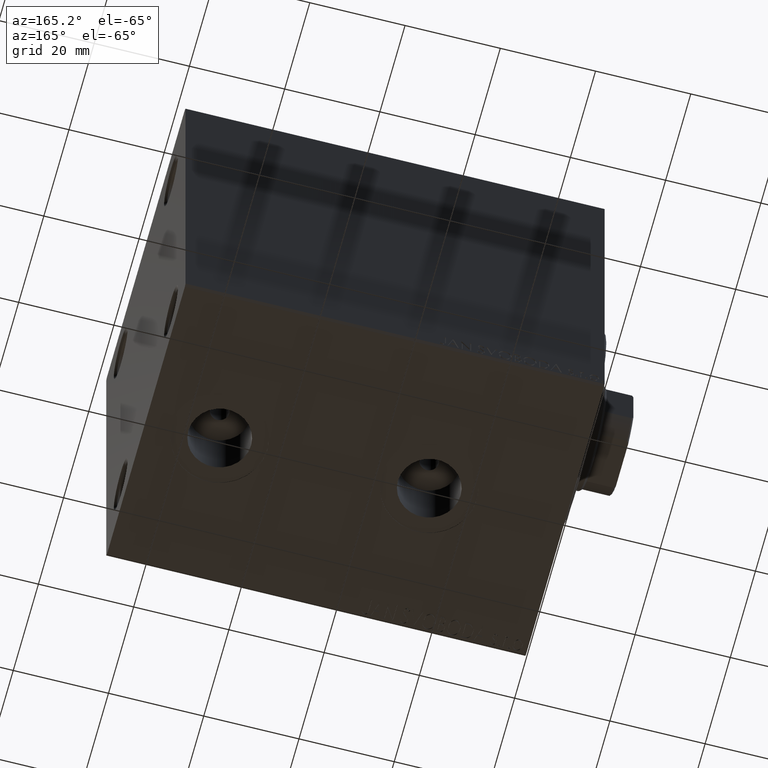
[diagram: clean part render]
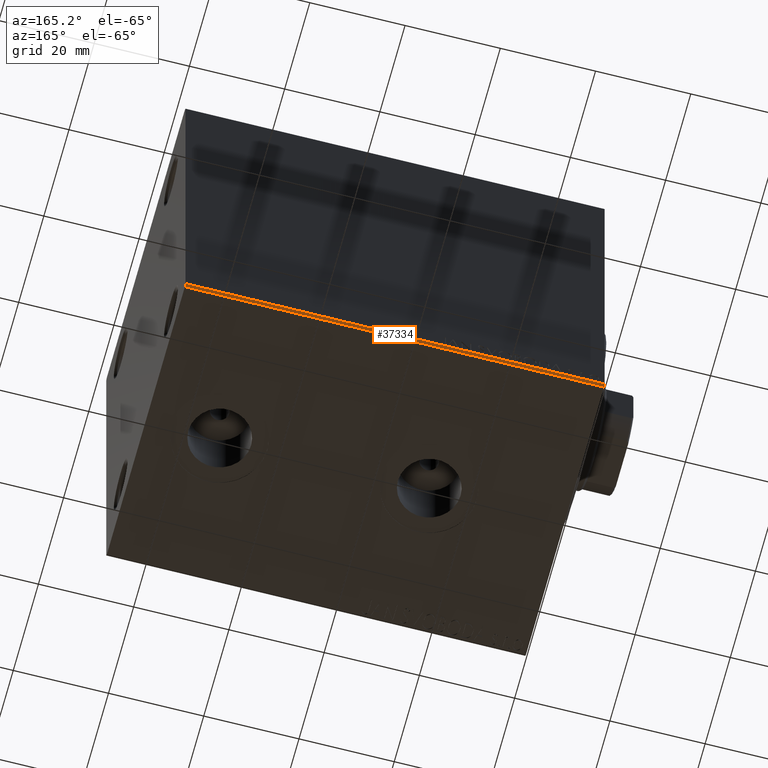
[diagram: same view with one face highlighted and labeled with its STEP entity id]
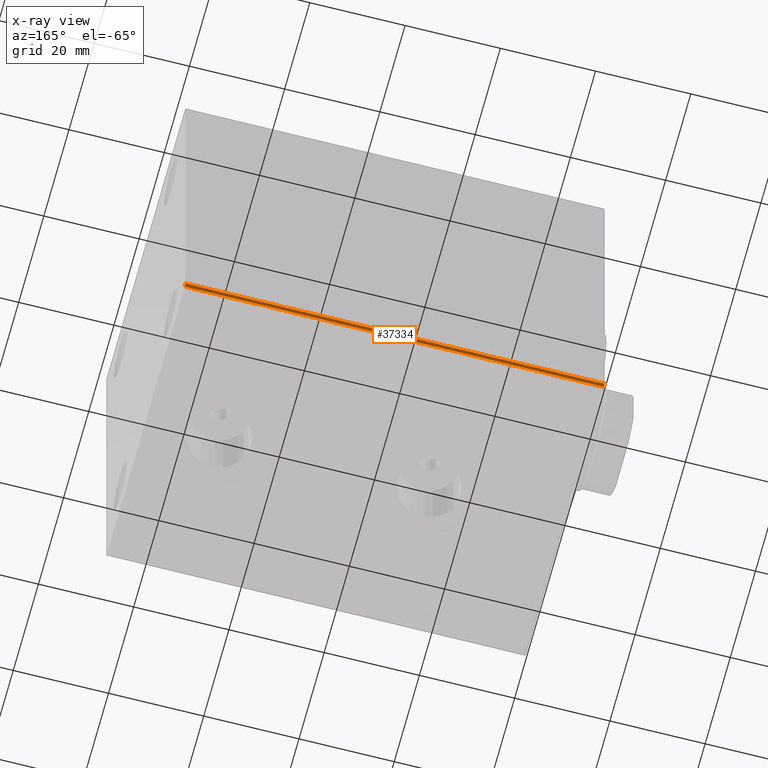
[diagram: x-ray of the same camera — body ghosted, the highlighted face saturated]
A machine part, auxiliary view. The second image highlights one B-rep face of the part: STEP entity #37334.
The next image is the same camera in x-ray: the body ghosted, the highlighted face saturated — about 0% of this face is hidden behind the body in this view.
In plain terms, the highlighted planar face has unit normal (0, -0.7071, 0.7071).
Its self-contained STEP definition (entity closure, byte-faithful):
#790 = DIRECTION ( 'NONE',  ( 0.000000000000000000, -0.7071067811865474617, -0.7071067811865474617 ) ) ;
#1462 = CARTESIAN_POINT ( 'NONE',  ( 88.00000000000000000, 31.00000000000004263, -42.50000000000000711 ) ) ;
#2845 = VECTOR ( 'NONE', #790, 1000.000000000000114 ) ;
#4914 = EDGE_CURVE ( 'NONE', #24690, #40205, #13469, .T. ) ;
#5669 = CARTESIAN_POINT ( 'NONE',  ( 88.00000000000000000, 31.50000000000001421, -42.00000000000003553 ) ) ;
#5770 = AXIS2_PLACEMENT_3D ( 'NONE', #5669, #19746, #8915 ) ;
#7763 = LINE ( 'NONE', #28748, #20560 ) ;
#8915 = DIRECTION ( 'NONE',  ( -1.000000000000000000, 0.000000000000000000, 0.000000000000000000 ) ) ;
#11188 = CARTESIAN_POINT ( 'NONE',  ( 0.000000000000000000, 31.50000000000001421, -42.00000000000003553 ) ) ;
#11496 = ORIENTED_EDGE ( 'NONE', *, *, #37506, .F. ) ;
#13469 = LINE ( 'NONE', #13918, #25652 ) ;
#13918 = CARTESIAN_POINT ( 'NONE',  ( 88.00000000000000000, 31.50000000000001421, -42.00000000000003553 ) ) ;
#14860 = EDGE_CURVE ( 'NONE', #23855, #37448, #30054, .T. ) ;
#14870 = VECTOR ( 'NONE', #29826, 1000.000000000000000 ) ;
#18773 = CARTESIAN_POINT ( 'NONE',  ( 88.00000000000000000, 31.00000000000004263, -42.50000000000000711 ) ) ;
#19085 = CARTESIAN_POINT ( 'NONE',  ( 88.00000000000000000, 31.50000000000001421, -42.00000000000003553 ) ) ;
#19746 = DIRECTION ( 'NONE',  ( 0.000000000000000000, -0.7071067811865475727, 0.7071067811865475727 ) ) ;
#20560 = VECTOR ( 'NONE', #39114, 1000.000000000000114 ) ;
#23681 = ORIENTED_EDGE ( 'NONE', *, *, #42788, .F. ) ;
#23830 = DIRECTION ( 'NONE',  ( -1.000000000000000000, 0.000000000000000000, 0.000000000000000000 ) ) ;
#23855 = VERTEX_POINT ( 'NONE', #41175 ) ;
#24582 = ORIENTED_EDGE ( 'NONE', *, *, #4914, .F. ) ;
#24690 = VERTEX_POINT ( 'NONE', #19085 ) ;
#25652 = VECTOR ( 'NONE', #23830, 1000.000000000000000 ) ;
#26343 = CARTESIAN_POINT ( 'NONE',  ( 0.000000000000000000, 31.50000000000001421, -42.00000000000003553 ) ) ;
#28748 = CARTESIAN_POINT ( 'NONE',  ( 88.00000000000000000, 36.75000000000002842, -36.75000000000002842 ) ) ;
#29826 = DIRECTION ( 'NONE',  ( 1.000000000000000000, 0.000000000000000000, 0.000000000000000000 ) ) ;
#30054 = LINE ( 'NONE', #1462, #14870 ) ;
#32821 = LINE ( 'NONE', #11188, #2845 ) ;
#33338 = FACE_OUTER_BOUND ( 'NONE', #36920, .T. ) ;
#36920 = EDGE_LOOP ( 'NONE', ( #23681, #42819, #11496, #24582 ) ) ;
#37334 = ADVANCED_FACE ( 'NONE', ( #33338 ), #40479, .F. ) ;
#37448 = VERTEX_POINT ( 'NONE', #18773 ) ;
#37506 = EDGE_CURVE ( 'NONE', #40205, #23855, #32821, .T. ) ;
#39114 = DIRECTION ( 'NONE',  ( -0.000000000000000000, 0.7071067811865474617, 0.7071067811865474617 ) ) ;
#40205 = VERTEX_POINT ( 'NONE', #26343 ) ;
#40479 = PLANE ( 'NONE',  #5770 ) ;
#41175 = CARTESIAN_POINT ( 'NONE',  ( 0.000000000000000000, 31.00000000000004263, -42.50000000000000711 ) ) ;
#42788 = EDGE_CURVE ( 'NONE', #37448, #24690, #7763, .T. ) ;
#42819 = ORIENTED_EDGE ( 'NONE', *, *, #14860, .F. ) ;